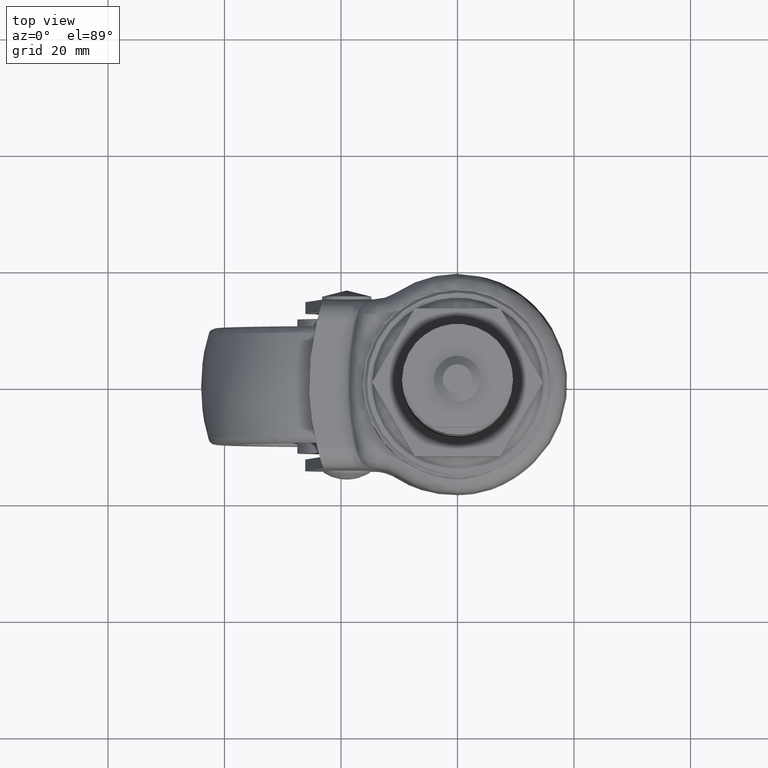
[diagram: clean part render]
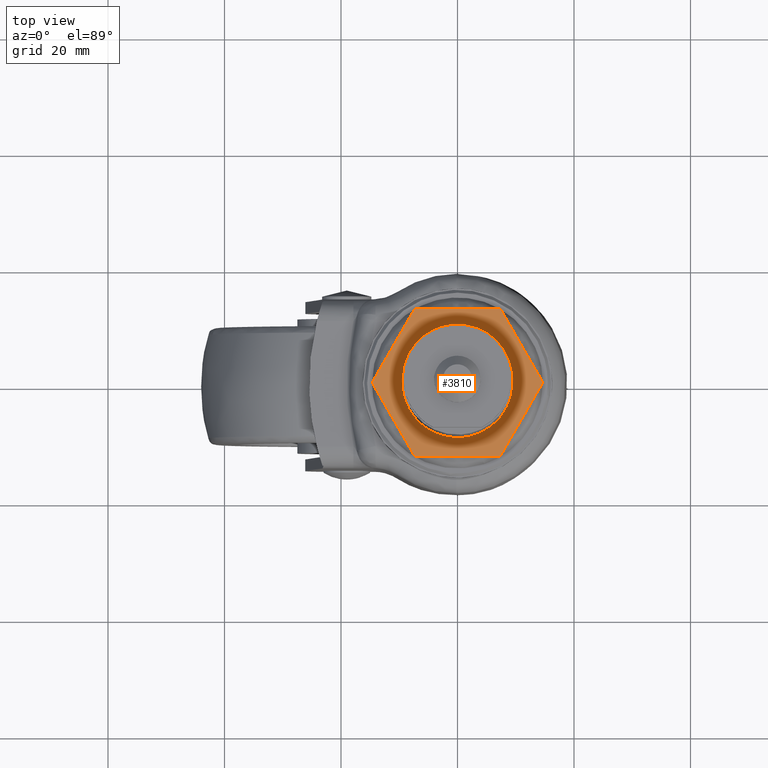
[diagram: same view with one face highlighted and labeled with its STEP entity id]
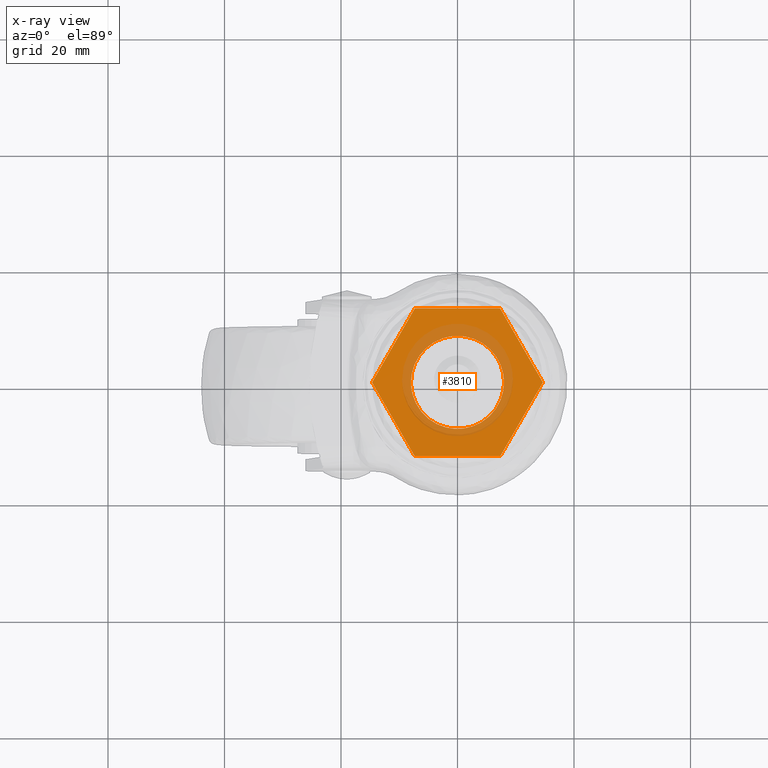
[diagram: x-ray of the same camera — body ghosted, the highlighted face saturated]
A machine part, top view. The second image highlights one B-rep face of the part: STEP entity #3810.
The next image is the same camera in x-ray: the body ghosted, the highlighted face saturated — about 25% of this face is hidden behind the body in this view.
In plain terms, the highlighted face is a freeform B-spline surface patch.
Its self-contained STEP definition (entity closure, byte-faithful):
#3162=CARTESIAN_POINT('',(-0.200789462666761,7.987476673633157,-1.941826E-016));
#3163=VERTEX_POINT('',#3162);
#3164=CARTESIAN_POINT('',(7.990000000000000,0.0,0.0));
#3165=VERTEX_POINT('',#3164);
#3166=CARTESIAN_POINT('',(-0.200789462666761,7.987476673633157,-1.941826E-016));
#3167=CARTESIAN_POINT('',(-0.100410586708627,7.990000000000001,-8.881784E-016));
#3168=CARTESIAN_POINT('',(0.0,7.990000000000000,-8.881784E-016));
#3169=CARTESIAN_POINT('',(7.990000000000000,7.990000000000000,-8.881784E-016));
#3170=CARTESIAN_POINT('',(7.990000000000000,0.0,-8.881784E-016));
#3178=(BOUNDED_CURVE()B_SPLINE_CURVE(2,(#3166,#3167,#3168,#3169,#3170),.UNSPECIFIED.,.F.,.U.)B_SPLINE_CURVE_WITH_KNOTS((3,2,3),(0.245579891767932,0.250000000000000,0.500000000000000),.UNSPECIFIED.)CURVE()GEOMETRIC_REPRESENTATION_ITEM()RATIONAL_B_SPLINE_CURVE((0.989826157677337,0.994821521089623,1.0,0.707106781186548,1.0))REPRESENTATION_ITEM(''));
#3179=EDGE_CURVE('',#3163,#3165,#3178,.T.);
#3198=CARTESIAN_POINT('',(-7.987476673931363,-0.200789462700346,-1.629443E-016));
#3199=VERTEX_POINT('',#3198);
#3213=CARTESIAN_POINT('',(7.990000000000000,0.0,-8.881784E-016));
#3214=CARTESIAN_POINT('',(7.990000000000000,-7.990000000000000,-8.881784E-016));
#3215=CARTESIAN_POINT('',(0.0,-7.990000000000000,-8.881784E-016));
#3216=CARTESIAN_POINT('',(-7.791671230549014,-7.990000000000001,-8.881784E-016));
#3217=CARTESIAN_POINT('',(-7.987476673931363,-0.200789462700346,-1.629443E-016));
#3225=(BOUNDED_CURVE()B_SPLINE_CURVE(2,(#3213,#3214,#3215,#3216,#3217),.UNSPECIFIED.,.F.,.U.)B_SPLINE_CURVE_WITH_KNOTS((3,2,3),(0.500000000000000,0.750000000000000,0.995579891766791),.UNSPECIFIED.)CURVE()GEOMETRIC_REPRESENTATION_ITEM()RATIONAL_B_SPLINE_CURVE((1.0,0.707106781186548,1.0,0.712285260098261,0.989826157674758))REPRESENTATION_ITEM(''));
#3226=EDGE_CURVE('',#3165,#3199,#3225,.T.);
#3248=CARTESIAN_POINT('',(-7.990000000000000,0.0,-8.881784E-016));
#3249=VERTEX_POINT('',#3248);
#3250=CARTESIAN_POINT('',(-7.990000000000000,0.0,-8.881784E-016));
#3251=CARTESIAN_POINT('',(-7.990000000000000,7.791671230599848,-8.881784E-016));
#3252=CARTESIAN_POINT('',(-0.200789462666761,7.987476673633158,-1.941826E-016));
#3260=(BOUNDED_CURVE()B_SPLINE_CURVE(2,(#3250,#3251,#3252),.UNSPECIFIED.,.F.,.U.)B_SPLINE_CURVE_WITH_KNOTS((3,3),(0.0,0.245579891767932),.UNSPECIFIED.)CURVE()GEOMETRIC_REPRESENTATION_ITEM()RATIONAL_B_SPLINE_CURVE((1.0,0.712285260096924,0.989826157677337))REPRESENTATION_ITEM(''));
#3261=EDGE_CURVE('',#3249,#3163,#3260,.T.);
#3263=CARTESIAN_POINT('',(-7.987476673931363,-0.200789462700346,-1.629443E-016));
#3264=CARTESIAN_POINT('',(-7.990000000000000,-0.100410586734712,-8.881784E-016));
#3265=CARTESIAN_POINT('',(-7.990000000000000,0.0,-8.881784E-016));
#3273=(BOUNDED_CURVE()B_SPLINE_CURVE(2,(#3263,#3264,#3265),.UNSPECIFIED.,.F.,.U.)B_SPLINE_CURVE_WITH_KNOTS((3,3),(0.995579891766790,1.0),.UNSPECIFIED.)CURVE()GEOMETRIC_REPRESENTATION_ITEM()RATIONAL_B_SPLINE_CURVE((0.989826157674755,0.994821521088285,1.0))REPRESENTATION_ITEM(''));
#3274=EDGE_CURVE('',#3199,#3249,#3273,.T.);
#3628=CARTESIAN_POINT('',(14.660000000000000,0.0,0.0));
#3629=VERTEX_POINT('',#3628);
#3630=CARTESIAN_POINT('',(7.330000000000000,12.695931999999960,0.0));
#3631=VERTEX_POINT('',#3630);
#3632=CARTESIAN_POINT('',(14.660000000000000,0.0,0.0));
#3633=CARTESIAN_POINT('',(7.330000000000000,12.695931999999960,0.0));
#3634=QUASI_UNIFORM_CURVE('',1,(#3632,#3633),.UNSPECIFIED.,.F.,.U.);
#3635=EDGE_CURVE('',#3629,#3631,#3634,.T.);
#3664=CARTESIAN_POINT('',(7.330000000000000,-12.695932000000139,0.0));
#3665=VERTEX_POINT('',#3664);
#3666=CARTESIAN_POINT('',(7.330000000000000,-12.695932000000139,0.0));
#3667=CARTESIAN_POINT('',(14.660000000000000,0.0,0.0));
#3668=QUASI_UNIFORM_CURVE('',1,(#3666,#3667),.UNSPECIFIED.,.F.,.U.);
#3669=EDGE_CURVE('',#3665,#3629,#3668,.T.);
#3692=CARTESIAN_POINT('',(-7.330000000000000,-12.695932000000139,0.0));
#3693=VERTEX_POINT('',#3692);
#3694=CARTESIAN_POINT('',(-7.330000000000000,-12.695932000000139,0.0));
#3695=CARTESIAN_POINT('',(7.330000000000000,-12.695932000000139,0.0));
#3696=QUASI_UNIFORM_CURVE('',1,(#3694,#3695),.UNSPECIFIED.,.F.,.U.);
#3697=EDGE_CURVE('',#3693,#3665,#3696,.T.);
#3720=CARTESIAN_POINT('',(-14.660000000000000,0.0,0.0));
#3721=VERTEX_POINT('',#3720);
#3722=CARTESIAN_POINT('',(-14.660000000000000,0.0,0.0));
#3723=CARTESIAN_POINT('',(-7.330000000000000,-12.695932000000139,0.0));
#3724=QUASI_UNIFORM_CURVE('',1,(#3722,#3723),.UNSPECIFIED.,.F.,.U.);
#3725=EDGE_CURVE('',#3721,#3693,#3724,.T.);
#3748=CARTESIAN_POINT('',(-7.330000000000000,12.695931999999960,0.0));
#3749=VERTEX_POINT('',#3748);
#3750=CARTESIAN_POINT('',(-7.330000000000000,12.695931999999960,0.0));
#3751=CARTESIAN_POINT('',(-14.660000000000000,0.0,0.0));
#3752=QUASI_UNIFORM_CURVE('',1,(#3750,#3751),.UNSPECIFIED.,.F.,.U.);
#3753=EDGE_CURVE('',#3749,#3721,#3752,.T.);
#3776=CARTESIAN_POINT('',(7.330000000000000,12.695931999999960,0.0));
#3777=CARTESIAN_POINT('',(-7.330000000000000,12.695931999999960,0.0));
#3778=QUASI_UNIFORM_CURVE('',1,(#3776,#3777),.UNSPECIFIED.,.F.,.U.);
#3779=EDGE_CURVE('',#3631,#3749,#3778,.T.);
#3791=CARTESIAN_POINT('',(-16.124533943172150,-13.964256034307089,0.0));
#3792=CARTESIAN_POINT('',(16.124534729595830,-13.964256034307089,0.0));
#3793=CARTESIAN_POINT('',(-16.124533943172150,13.964256261327860,0.0));
#3794=CARTESIAN_POINT('',(16.124534729595830,13.964256261327860,0.0));
#3795=B_SPLINE_SURFACE_WITH_KNOTS('',1,1,((#3791,#3793),(#3792,#3794)),.UNSPECIFIED.,.F.,.F.,.U.,(2,2),(2,2),(0.0,32.249068672767990),(0.0,27.928512295634949),.UNSPECIFIED.);
#3796=ORIENTED_EDGE('',*,*,#3779,.T.);
#3797=ORIENTED_EDGE('',*,*,#3753,.T.);
#3798=ORIENTED_EDGE('',*,*,#3725,.T.);
#3799=ORIENTED_EDGE('',*,*,#3697,.T.);
#3800=ORIENTED_EDGE('',*,*,#3669,.T.);
#3801=ORIENTED_EDGE('',*,*,#3635,.T.);
#3802=EDGE_LOOP('',(#3796,#3797,#3798,#3799,#3800,#3801));
#3803=FACE_OUTER_BOUND('',#3802,.T.);
#3804=ORIENTED_EDGE('',*,*,#3226,.T.);
#3805=ORIENTED_EDGE('',*,*,#3274,.T.);
#3806=ORIENTED_EDGE('',*,*,#3261,.T.);
#3807=ORIENTED_EDGE('',*,*,#3179,.T.);
#3808=EDGE_LOOP('',(#3804,#3805,#3806,#3807));
#3809=FACE_BOUND('',#3808,.T.);
#3810=ADVANCED_FACE('',(#3803,#3809),#3795,.T.);